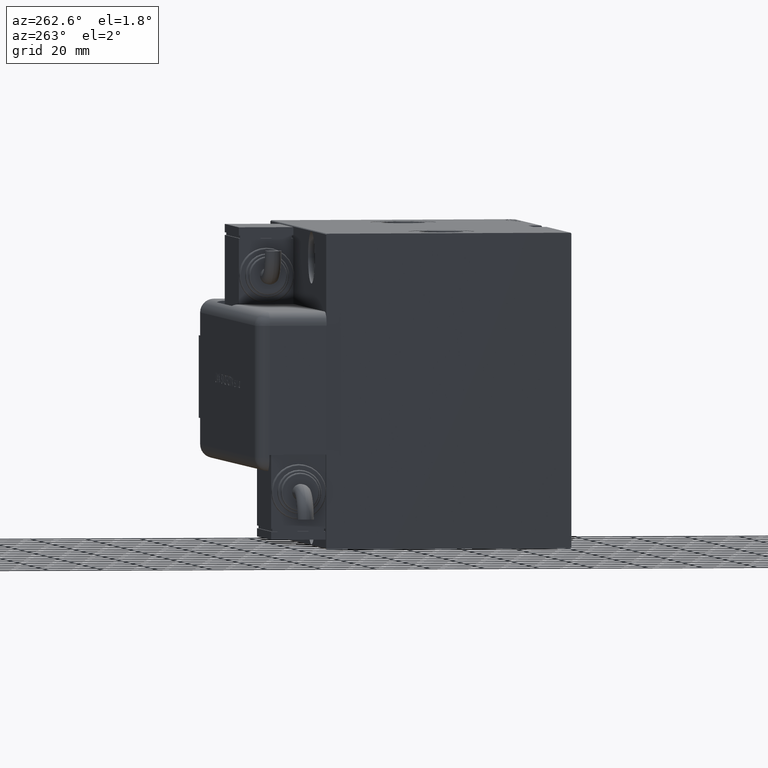
[diagram: clean part render]
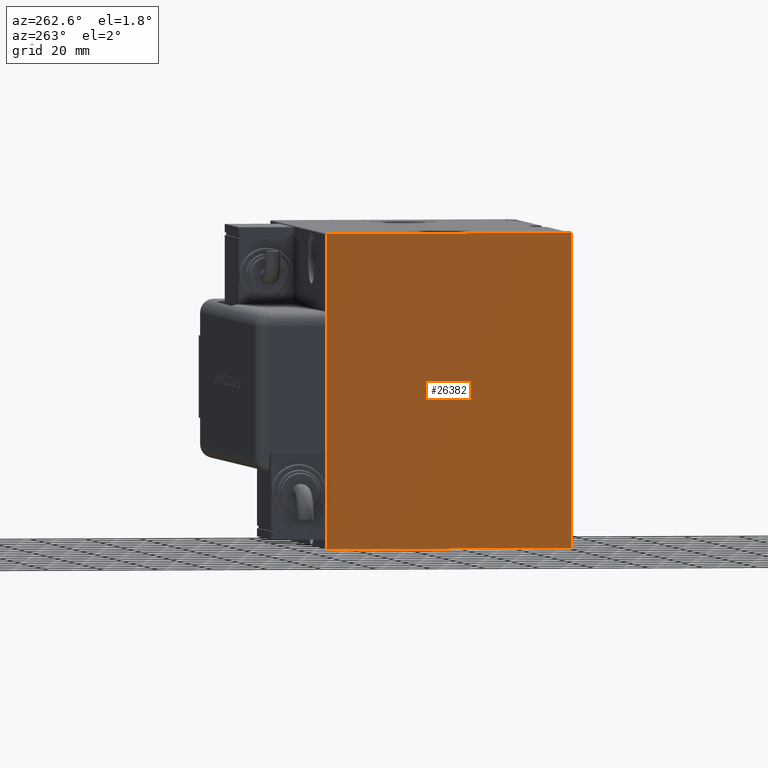
[diagram: same view with one face highlighted and labeled with its STEP entity id]
A machine part, auxiliary view. The second image highlights one B-rep face of the part: STEP entity #26382.
In plain terms, the highlighted planar face has unit normal (-1, 0, 0).
Its self-contained STEP definition (entity closure, byte-faithful):
#103 = LINE ( 'NONE', #32362, #27634 ) ;
#313 = VERTEX_POINT ( 'NONE', #18859 ) ;
#2056 = CARTESIAN_POINT ( 'NONE',  ( 158.0000000000000000, 51.10000000000053433, 51.09999999999935483 ) ) ;
#3091 = VECTOR ( 'NONE', #28585, 1000.000000000000000 ) ;
#3877 = LINE ( 'NONE', #35853, #4730 ) ;
#4612 = VERTEX_POINT ( 'NONE', #41206 ) ;
#4730 = VECTOR ( 'NONE', #4759, 1000.000000000000114 ) ;
#4759 = DIRECTION ( 'NONE',  ( -0.000000000000000000, 0.7071067811865474617, -0.7071067811865474617 ) ) ;
#4843 = VECTOR ( 'NONE', #7606, 1000.000000000000114 ) ;
#6627 = CARTESIAN_POINT ( 'NONE',  ( 158.0000000000000000, -45.00000000000000000, 57.49999999999999289 ) ) ;
#6828 = LINE ( 'NONE', #2056, #45153 ) ;
#7606 = DIRECTION ( 'NONE',  ( -0.000000000000000000, -0.7071067811865474617, -0.7071067811865474617 ) ) ;
#8207 = CARTESIAN_POINT ( 'NONE',  ( 158.0000000000000000, -51.09999999999996589, 51.09999999999996589 ) ) ;
#8718 = DIRECTION ( 'NONE',  ( 0.000000000000000000, -1.000000000000000000, -2.312964634635742957E-16 ) ) ;
#10365 = CARTESIAN_POINT ( 'NONE',  ( 158.0000000000000000, 45.00000000000001421, -57.50000000000000711 ) ) ;
#11005 = DIRECTION ( 'NONE',  ( -0.000000000000000000, -0.7071067811865393571, 0.7071067811865556774 ) ) ;
#11417 = VECTOR ( 'NONE', #24566, 1000.000000000000000 ) ;
#11585 = CARTESIAN_POINT ( 'NONE',  ( 158.0000000000000000, 51.10000000000002984, -51.10000000000002984 ) ) ;
#13535 = VERTEX_POINT ( 'NONE', #55390 ) ;
#13636 = VECTOR ( 'NONE', #8718, 1000.000000000000000 ) ;
#13799 = CARTESIAN_POINT ( 'NONE',  ( 158.0000000000000000, 44.70000000000001705, 57.50000000000001421 ) ) ;
#13846 = DIRECTION ( 'NONE',  ( 1.000000000000000000, 0.000000000000000000, -0.000000000000000000 ) ) ;
#13886 = VERTEX_POINT ( 'NONE', #21785 ) ;
#14363 = AXIS2_PLACEMENT_3D ( 'NONE', #32673, #13846, #19502 ) ;
#14828 = VERTEX_POINT ( 'NONE', #55271 ) ;
#16364 = LINE ( 'NONE', #11585, #55898 ) ;
#16579 = EDGE_CURVE ( 'NONE', #313, #13886, #103, .T. ) ;
#16628 = ORIENTED_EDGE ( 'NONE', *, *, #16579, .T. ) ;
#16646 = EDGE_CURVE ( 'NONE', #13535, #14828, #20673, .T. ) ;
#16654 = VERTEX_POINT ( 'NONE', #24860 ) ;
#18394 = ORIENTED_EDGE ( 'NONE', *, *, #31961, .T. ) ;
#18859 = CARTESIAN_POINT ( 'NONE',  ( 158.0000000000000000, -44.70000000000003126, -57.50000000000002132 ) ) ;
#19502 = DIRECTION ( 'NONE',  ( -0.000000000000000000, 0.000000000000000000, -1.000000000000000000 ) ) ;
#20673 = LINE ( 'NONE', #6627, #11417 ) ;
#21785 = CARTESIAN_POINT ( 'NONE',  ( 158.0000000000000000, 44.70000000000001705, -57.50000000000000711 ) ) ;
#24566 = DIRECTION ( 'NONE',  ( 0.000000000000000000, 0.000000000000000000, -1.000000000000000000 ) ) ;
#24777 = EDGE_CURVE ( 'NONE', #14828, #313, #3877, .T. ) ;
#24860 = CARTESIAN_POINT ( 'NONE',  ( 158.0000000000000000, 45.00000000000001421, -57.20000000000004547 ) ) ;
#25550 = LINE ( 'NONE', #8207, #4843 ) ;
#26382 = ADVANCED_FACE ( 'NONE', ( #33249 ), #41323, .T. ) ;
#27634 = VECTOR ( 'NONE', #46665, 1000.000000000000000 ) ;
#28585 = DIRECTION ( 'NONE',  ( 0.000000000000000000, 0.000000000000000000, 1.000000000000000000 ) ) ;
#28654 = EDGE_LOOP ( 'NONE', ( #16628, #37844, #18394, #40789, #44524, #50524, #55731, #42748 ) ) ;
#28685 = EDGE_CURVE ( 'NONE', #4612, #13535, #25550, .T. ) ;
#29526 = DIRECTION ( 'NONE',  ( -0.000000000000000000, 0.7071067811865474617, 0.7071067811865474617 ) ) ;
#31433 = LINE ( 'NONE', #49624, #13636 ) ;
#31961 = EDGE_CURVE ( 'NONE', #16654, #34776, #53239, .T. ) ;
#32362 = CARTESIAN_POINT ( 'NONE',  ( 158.0000000000000000, -45.00000000000000000, -57.50000000000002132 ) ) ;
#32673 = CARTESIAN_POINT ( 'NONE',  ( 158.0000000000000000, 0.000000000000000000, 0.000000000000000000 ) ) ;
#33249 = FACE_OUTER_BOUND ( 'NONE', #28654, .T. ) ;
#34776 = VERTEX_POINT ( 'NONE', #37484 ) ;
#35853 = CARTESIAN_POINT ( 'NONE',  ( 158.0000000000000000, -51.10000000000002984, -51.10000000000002984 ) ) ;
#37484 = CARTESIAN_POINT ( 'NONE',  ( 158.0000000000000000, 45.00000000000001421, 57.19999999999998863 ) ) ;
#37704 = EDGE_CURVE ( 'NONE', #37770, #4612, #31433, .T. ) ;
#37770 = VERTEX_POINT ( 'NONE', #13799 ) ;
#37844 = ORIENTED_EDGE ( 'NONE', *, *, #46023, .T. ) ;
#40789 = ORIENTED_EDGE ( 'NONE', *, *, #56010, .T. ) ;
#41206 = CARTESIAN_POINT ( 'NONE',  ( 158.0000000000000000, -44.69999999999991758, 57.49999999999999289 ) ) ;
#41323 = PLANE ( 'NONE',  #14363 ) ;
#42748 = ORIENTED_EDGE ( 'NONE', *, *, #24777, .T. ) ;
#44524 = ORIENTED_EDGE ( 'NONE', *, *, #37704, .T. ) ;
#45153 = VECTOR ( 'NONE', #11005, 1000.000000000000000 ) ;
#46023 = EDGE_CURVE ( 'NONE', #13886, #16654, #16364, .T. ) ;
#46665 = DIRECTION ( 'NONE',  ( 0.000000000000000000, 1.000000000000000000, 1.541976423090495140E-16 ) ) ;
#49624 = CARTESIAN_POINT ( 'NONE',  ( 158.0000000000000000, 45.00000000000001421, 57.50000000000001421 ) ) ;
#50524 = ORIENTED_EDGE ( 'NONE', *, *, #28685, .T. ) ;
#53239 = LINE ( 'NONE', #10365, #3091 ) ;
#55271 = CARTESIAN_POINT ( 'NONE',  ( 158.0000000000000000, -45.00000000000000000, -57.20000000000003126 ) ) ;
#55390 = CARTESIAN_POINT ( 'NONE',  ( 158.0000000000000000, -45.00000000000000000, 57.19999999999994600 ) ) ;
#55731 = ORIENTED_EDGE ( 'NONE', *, *, #16646, .T. ) ;
#55898 = VECTOR ( 'NONE', #29526, 1000.000000000000114 ) ;
#56010 = EDGE_CURVE ( 'NONE', #34776, #37770, #6828, .T. ) ;